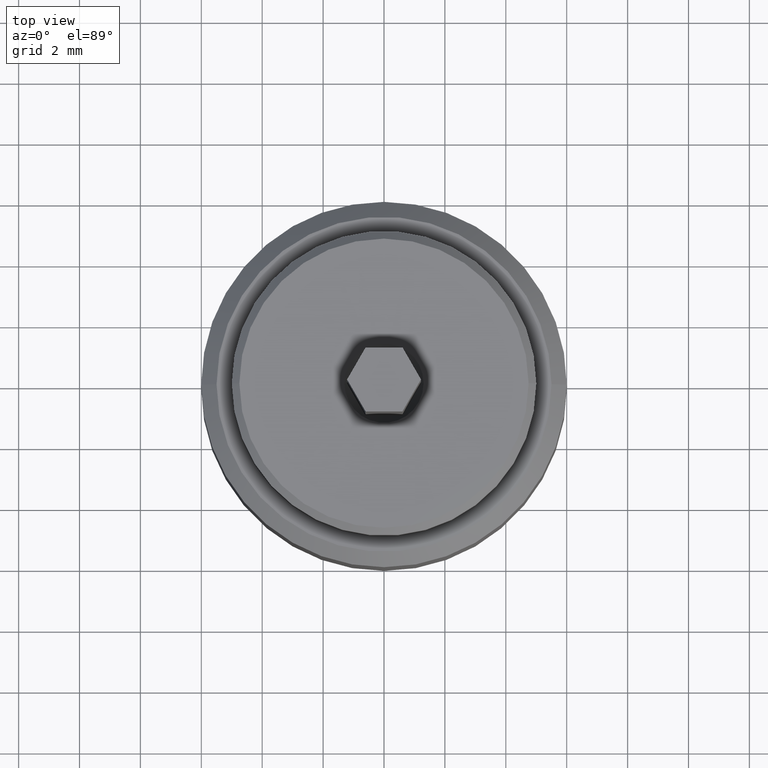
[diagram: clean part render]
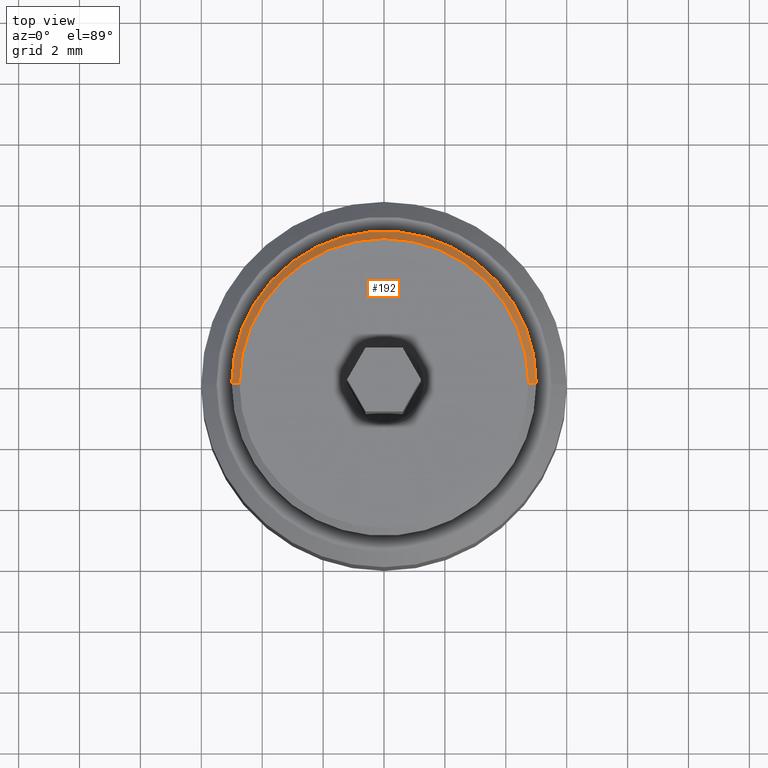
[diagram: same view with one face highlighted and labeled with its STEP entity id]
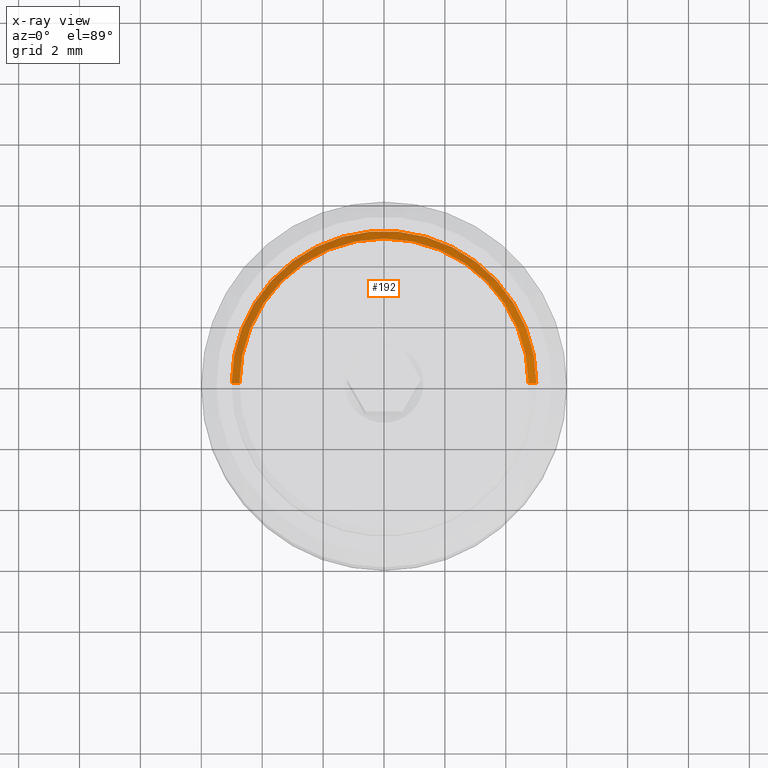
[diagram: x-ray of the same camera — body ghosted, the highlighted face saturated]
A machine part, top view. The second image highlights one B-rep face of the part: STEP entity #192.
The next image is the same camera in x-ray: the body ghosted, the highlighted face saturated — about 0% of this face is hidden behind the body in this view.
In plain terms, the highlighted conical surface has half-angle 45 deg.
Its self-contained STEP definition (entity closure, byte-faithful):
#23 = LINE ( 'NONE', #858, #922 ) ;
#53 = CARTESIAN_POINT ( 'NONE',  ( -4.750000000000007105, 0.000000000000000000, 10.00000000000000000 ) ) ;
#71 = VERTEX_POINT ( 'NONE', #311 ) ;
#77 = EDGE_CURVE ( 'NONE', #430, #71, #23, .T. ) ;
#90 = AXIS2_PLACEMENT_3D ( 'NONE', #132, #659, #583 ) ;
#99 = DIRECTION ( 'NONE',  ( -1.000000000000000000, 0.000000000000000000, 0.000000000000000000 ) ) ;
#132 = CARTESIAN_POINT ( 'NONE',  ( 0.000000000000000000, 0.000000000000000000, 10.00000000000000000 ) ) ;
#165 = DIRECTION ( 'NONE',  ( 1.000000000000000000, 0.000000000000000000, 0.000000000000000000 ) ) ;
#179 = CARTESIAN_POINT ( 'NONE',  ( 0.000000000000000000, 0.000000000000000000, 10.00000000000000178 ) ) ;
#192 = ADVANCED_FACE ( 'NONE', ( #415 ), #435, .T. ) ;
#306 = DIRECTION ( 'NONE',  ( 0.7071067811865451302, 8.659560562354904508E-17, -0.7071067811865500152 ) ) ;
#311 = CARTESIAN_POINT ( 'NONE',  ( 5.000000000000000000, 0.000000000000000000, 9.750000000000005329 ) ) ;
#355 = DIRECTION ( 'NONE',  ( -0.7071067811865451302, 0.000000000000000000, -0.7071067811865500152 ) ) ;
#386 = VERTEX_POINT ( 'NONE', #53 ) ;
#415 = FACE_OUTER_BOUND ( 'NONE', #838, .T. ) ;
#422 = CIRCLE ( 'NONE', #811, 5.000000000000000000 ) ;
#430 = VERTEX_POINT ( 'NONE', #653 ) ;
#435 = CONICAL_SURFACE ( 'NONE', #864, 4.750000000000005329, 0.7853981633974447263 ) ;
#438 = ORIENTED_EDGE ( 'NONE', *, *, #581, .F. ) ;
#465 = ORIENTED_EDGE ( 'NONE', *, *, #484, .F. ) ;
#473 = CIRCLE ( 'NONE', #90, 4.750000000000007105 ) ;
#479 = ORIENTED_EDGE ( 'NONE', *, *, #77, .T. ) ;
#481 = EDGE_CURVE ( 'NONE', #386, #618, #820, .T. ) ;
#484 = EDGE_CURVE ( 'NONE', #430, #386, #473, .T. ) ;
#504 = ORIENTED_EDGE ( 'NONE', *, *, #481, .F. ) ;
#530 = DIRECTION ( 'NONE',  ( 0.000000000000000000, 0.000000000000000000, -1.000000000000000000 ) ) ;
#581 = EDGE_CURVE ( 'NONE', #618, #71, #422, .T. ) ;
#583 = DIRECTION ( 'NONE',  ( 1.000000000000000000, 0.000000000000000000, 0.000000000000000000 ) ) ;
#607 = CARTESIAN_POINT ( 'NONE',  ( 0.000000000000000000, 0.000000000000000000, 9.750000000000005329 ) ) ;
#618 = VERTEX_POINT ( 'NONE', #857 ) ;
#647 = DIRECTION ( 'NONE',  ( 0.000000000000000000, 0.000000000000000000, -1.000000000000000000 ) ) ;
#653 = CARTESIAN_POINT ( 'NONE',  ( 4.750000000000007105, 5.970153145843351291E-16, 10.00000000000000000 ) ) ;
#659 = DIRECTION ( 'NONE',  ( 0.000000000000000000, 0.000000000000000000, 1.000000000000000000 ) ) ;
#811 = AXIS2_PLACEMENT_3D ( 'NONE', #607, #530, #165 ) ;
#820 = LINE ( 'NONE', #964, #958 ) ;
#838 = EDGE_LOOP ( 'NONE', ( #465, #479, #438, #504 ) ) ;
#857 = CARTESIAN_POINT ( 'NONE',  ( -5.000000000000000000, 6.123233995736765296E-16, 9.750000000000005329 ) ) ;
#858 = CARTESIAN_POINT ( 'NONE',  ( 4.750000000000005329, 5.817072295949934328E-16, 10.00000000000000178 ) ) ;
#864 = AXIS2_PLACEMENT_3D ( 'NONE', #179, #647, #99 ) ;
#922 = VECTOR ( 'NONE', #306, 1000.000000000000114 ) ;
#958 = VECTOR ( 'NONE', #355, 1000.000000000000114 ) ;
#964 = CARTESIAN_POINT ( 'NONE',  ( -4.750000000000005329, 0.000000000000000000, 10.00000000000000178 ) ) ;